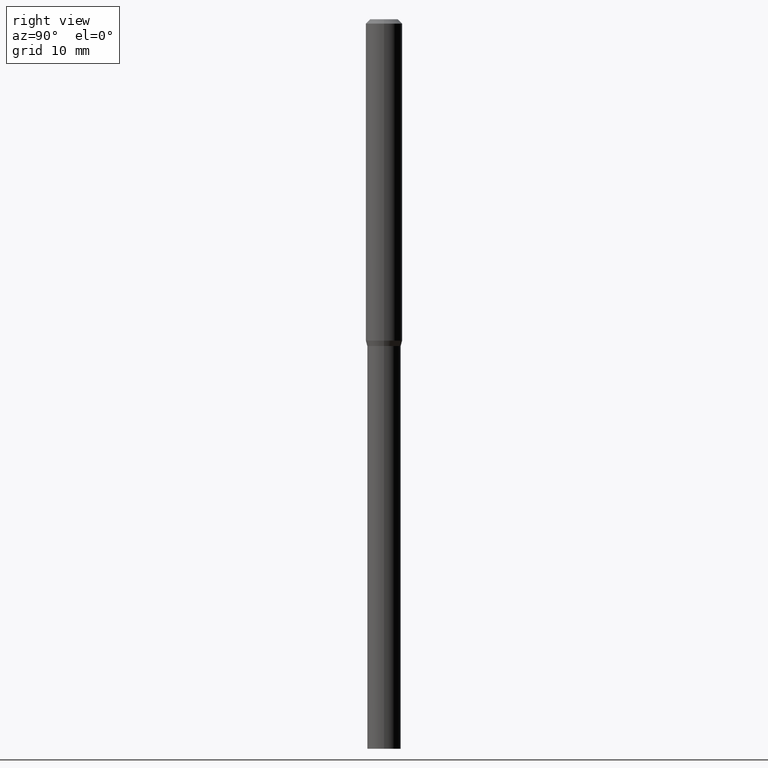
[diagram: clean part render]
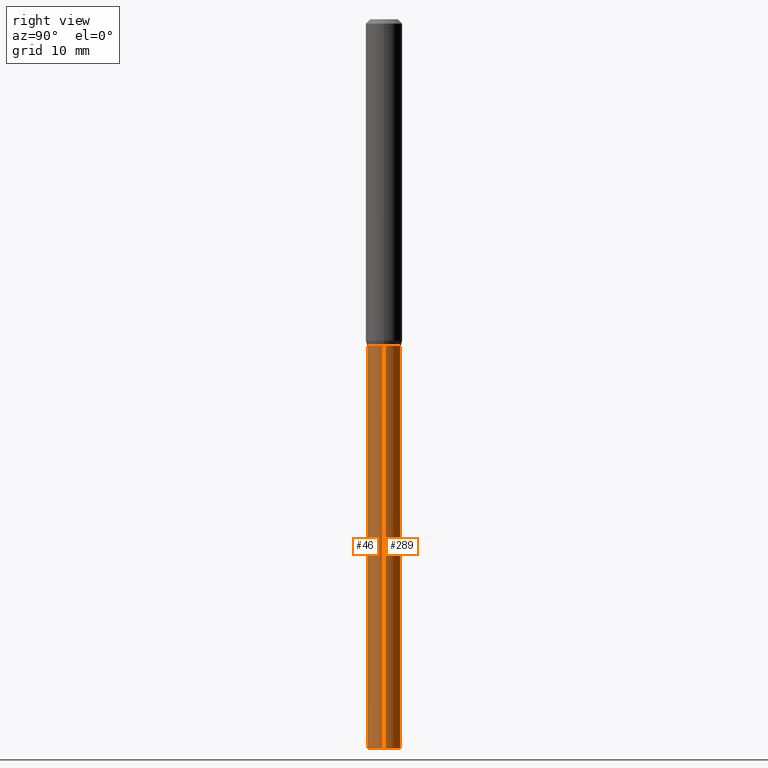
[diagram: same view with one multi-face feature highlighted, each face labeled with its STEP entity id]
A machine part, right view. The highlighted faces form ONE feature: a constant-radius fillet chain: 2 tangent blend faces with common blend radius 1.4605 mm. The faces share edges in the B-rep.
Their STEP definitions:
[1] entity #289 (Cylinder):
#1 = CARTESIAN_POINT ( 'NONE',  ( 0.05750000000000000250, -4.311979453471284209E-15, -1.120000000000000329 ) ) ;
#7 = CARTESIAN_POINT ( 'NONE',  ( -0.05750000000000000250, -5.911019150244036990E-15, -1.120000000000000329 ) ) ;
#22 = EDGE_LOOP ( 'NONE', ( #248, #134, #64, #318 ) ) ;
#26 = AXIS2_PLACEMENT_3D ( 'NONE', #65, #423, #301 ) ;
#41 = CYLINDRICAL_SURFACE ( 'NONE', #421, 0.05750000000000000250 ) ;
#44 = LINE ( 'NONE', #82, #338 ) ;
#64 = ORIENTED_EDGE ( 'NONE', *, *, #415, .F. ) ;
#65 = CARTESIAN_POINT ( 'NONE',  ( 6.113672015462842613E-29, -8.728703347107864943E-15, -2.500000000000000000 ) ) ;
#67 = VERTEX_POINT ( 'NONE', #70 ) ;
#70 = CARTESIAN_POINT ( 'NONE',  ( -0.05750000000000000250, -5.911019150244036990E-15, -2.500000000000000000 ) ) ;
#80 = EDGE_CURVE ( 'NONE', #67, #98, #182, .T. ) ;
#82 = CARTESIAN_POINT ( 'NONE',  ( 0.05750000000000000250, -4.015203539669603161E-16, 2.803801646082662941E-30 ) ) ;
#92 = CIRCLE ( 'NONE', #136, 0.05750000000000000250 ) ;
#98 = VERTEX_POINT ( 'NONE', #7 ) ;
#123 = CARTESIAN_POINT ( 'NONE',  ( 0.000000000000000000, 0.000000000000000000, 0.000000000000000000 ) ) ;
#130 = DIRECTION ( 'NONE',  ( -2.445468806185136597E-29, 3.491481338843145583E-15, 1.000000000000000000 ) ) ;
#134 = ORIENTED_EDGE ( 'NONE', *, *, #80, .T. ) ;
#135 = VECTOR ( 'NONE', #220, 39.37007874015748143 ) ;
#136 = AXIS2_PLACEMENT_3D ( 'NONE', #425, #285, #145 ) ;
#145 = DIRECTION ( 'NONE',  ( 1.000000000000000000, -6.982962677686265133E-15, 0.000000000000000000 ) ) ;
#157 = EDGE_CURVE ( 'NONE', #173, #67, #236, .T. ) ;
#173 = VERTEX_POINT ( 'NONE', #441 ) ;
#182 = LINE ( 'NONE', #184, #135 ) ;
#184 = CARTESIAN_POINT ( 'NONE',  ( -0.05750000000000000250, 4.085620730620576246E-16, -2.828387676896570712E-30 ) ) ;
#195 = DIRECTION ( 'NONE',  ( -2.445468806185136877E-29, 3.491481338843145188E-15, 1.000000000000000000 ) ) ;
#218 = DIRECTION ( 'NONE',  ( 1.000000000000000000, -6.982962677686265922E-15, 4.876176775795935232E-29 ) ) ;
#220 = DIRECTION ( 'NONE',  ( -2.445468806185136877E-29, 3.491481338843145188E-15, 1.000000000000000000 ) ) ;
#236 = CIRCLE ( 'NONE', #26, 0.05750000000000000250 ) ;
#248 = ORIENTED_EDGE ( 'NONE', *, *, #157, .T. ) ;
#276 = VERTEX_POINT ( 'NONE', #1 ) ;
#285 = DIRECTION ( 'NONE',  ( -2.445468806185136597E-29, 3.491481338843145583E-15, 1.000000000000000000 ) ) ;
#289 = ADVANCED_FACE ( 'NONE', ( #392 ), #41, .T. ) ;
#301 = DIRECTION ( 'NONE',  ( 1.000000000000000000, -6.982962677686256455E-15, 0.000000000000000000 ) ) ;
#318 = ORIENTED_EDGE ( 'NONE', *, *, #378, .F. ) ;
#338 = VECTOR ( 'NONE', #195, 39.37007874015748143 ) ;
#378 = EDGE_CURVE ( 'NONE', #173, #276, #44, .T. ) ;
#392 = FACE_OUTER_BOUND ( 'NONE', #22, .T. ) ;
#415 = EDGE_CURVE ( 'NONE', #276, #98, #92, .T. ) ;
#421 = AXIS2_PLACEMENT_3D ( 'NONE', #123, #130, #218 ) ;
#423 = DIRECTION ( 'NONE',  ( -2.445468806185136597E-29, 3.491481338843145583E-15, 1.000000000000000000 ) ) ;
#425 = CARTESIAN_POINT ( 'NONE',  ( 2.738925062927354020E-29, -3.910459099504324188E-15, -1.120000000000000329 ) ) ;
#441 = CARTESIAN_POINT ( 'NONE',  ( 0.05750000000000000250, -9.130223701074824963E-15, -2.500000000000000000 ) ) ;
[2] entity #46 (Cylinder):
#1 = CARTESIAN_POINT ( 'NONE',  ( 0.05750000000000000250, -4.311979453471284209E-15, -1.120000000000000329 ) ) ;
#6 = CARTESIAN_POINT ( 'NONE',  ( 6.113672015462842613E-29, -8.728703347107864943E-15, -2.500000000000000000 ) ) ;
#7 = CARTESIAN_POINT ( 'NONE',  ( -0.05750000000000000250, -5.911019150244036990E-15, -1.120000000000000329 ) ) ;
#33 = CYLINDRICAL_SURFACE ( 'NONE', #420, 0.05750000000000000250 ) ;
#37 = CIRCLE ( 'NONE', #233, 0.05750000000000000250 ) ;
#44 = LINE ( 'NONE', #82, #338 ) ;
#46 = ADVANCED_FACE ( 'NONE', ( #284 ), #33, .T. ) ;
#67 = VERTEX_POINT ( 'NONE', #70 ) ;
#70 = CARTESIAN_POINT ( 'NONE',  ( -0.05750000000000000250, -5.911019150244036990E-15, -2.500000000000000000 ) ) ;
#76 = DIRECTION ( 'NONE',  ( 1.000000000000000000, -6.982962677686265922E-15, 4.876176775795935232E-29 ) ) ;
#80 = EDGE_CURVE ( 'NONE', #67, #98, #182, .T. ) ;
#82 = CARTESIAN_POINT ( 'NONE',  ( 0.05750000000000000250, -4.015203539669603161E-16, 2.803801646082662941E-30 ) ) ;
#95 = CARTESIAN_POINT ( 'NONE',  ( 2.738925062927354020E-29, -3.910459099504324188E-15, -1.120000000000000329 ) ) ;
#98 = VERTEX_POINT ( 'NONE', #7 ) ;
#113 = ORIENTED_EDGE ( 'NONE', *, *, #317, .T. ) ;
#119 = DIRECTION ( 'NONE',  ( 1.000000000000000000, -6.982962677686256455E-15, 0.000000000000000000 ) ) ;
#129 = ORIENTED_EDGE ( 'NONE', *, *, #275, .F. ) ;
#135 = VECTOR ( 'NONE', #220, 39.37007874015748143 ) ;
#173 = VERTEX_POINT ( 'NONE', #441 ) ;
#182 = LINE ( 'NONE', #184, #135 ) ;
#184 = CARTESIAN_POINT ( 'NONE',  ( -0.05750000000000000250, 4.085620730620576246E-16, -2.828387676896570712E-30 ) ) ;
#195 = DIRECTION ( 'NONE',  ( -2.445468806185136877E-29, 3.491481338843145188E-15, 1.000000000000000000 ) ) ;
#215 = CARTESIAN_POINT ( 'NONE',  ( 0.000000000000000000, 0.000000000000000000, 0.000000000000000000 ) ) ;
#217 = CIRCLE ( 'NONE', #328, 0.05750000000000000250 ) ;
#220 = DIRECTION ( 'NONE',  ( -2.445468806185136877E-29, 3.491481338843145188E-15, 1.000000000000000000 ) ) ;
#233 = AXIS2_PLACEMENT_3D ( 'NONE', #95, #316, #329 ) ;
#269 = DIRECTION ( 'NONE',  ( -2.445468806185136597E-29, 3.491481338843145583E-15, 1.000000000000000000 ) ) ;
#275 = EDGE_CURVE ( 'NONE', #98, #276, #37, .T. ) ;
#276 = VERTEX_POINT ( 'NONE', #1 ) ;
#284 = FACE_OUTER_BOUND ( 'NONE', #449, .T. ) ;
#295 = DIRECTION ( 'NONE',  ( -2.445468806185136597E-29, 3.491481338843145583E-15, 1.000000000000000000 ) ) ;
#316 = DIRECTION ( 'NONE',  ( -2.445468806185136597E-29, 3.491481338843145583E-15, 1.000000000000000000 ) ) ;
#317 = EDGE_CURVE ( 'NONE', #67, #173, #217, .T. ) ;
#328 = AXIS2_PLACEMENT_3D ( 'NONE', #6, #269, #119 ) ;
#329 = DIRECTION ( 'NONE',  ( 1.000000000000000000, -6.982962677686265133E-15, 0.000000000000000000 ) ) ;
#338 = VECTOR ( 'NONE', #195, 39.37007874015748143 ) ;
#378 = EDGE_CURVE ( 'NONE', #173, #276, #44, .T. ) ;
#413 = ORIENTED_EDGE ( 'NONE', *, *, #378, .T. ) ;
#420 = AXIS2_PLACEMENT_3D ( 'NONE', #215, #295, #76 ) ;
#441 = CARTESIAN_POINT ( 'NONE',  ( 0.05750000000000000250, -9.130223701074824963E-15, -2.500000000000000000 ) ) ;
#448 = ORIENTED_EDGE ( 'NONE', *, *, #80, .F. ) ;
#449 = EDGE_LOOP ( 'NONE', ( #448, #113, #413, #129 ) ) ;